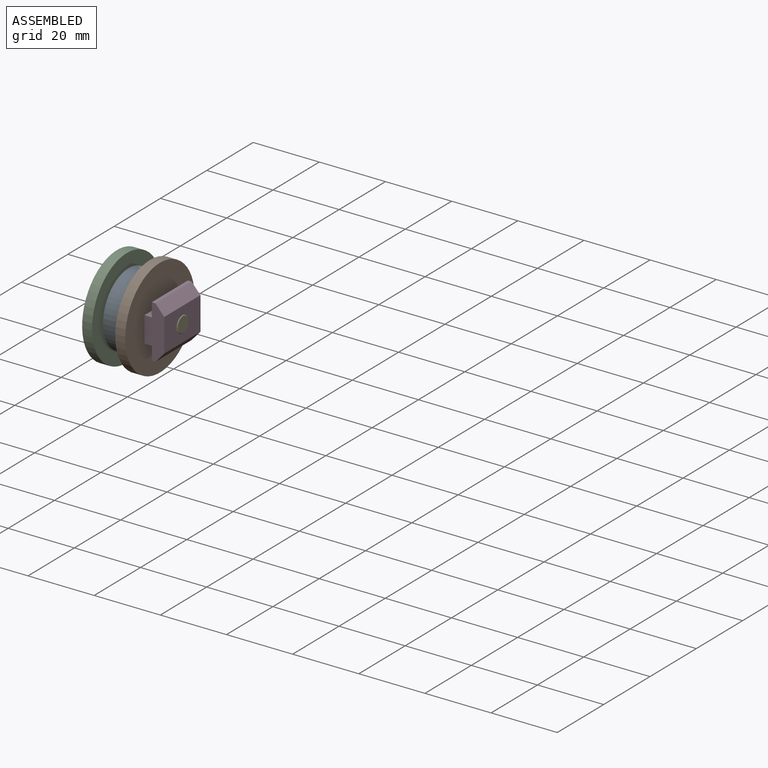
[diagram: assembled view]
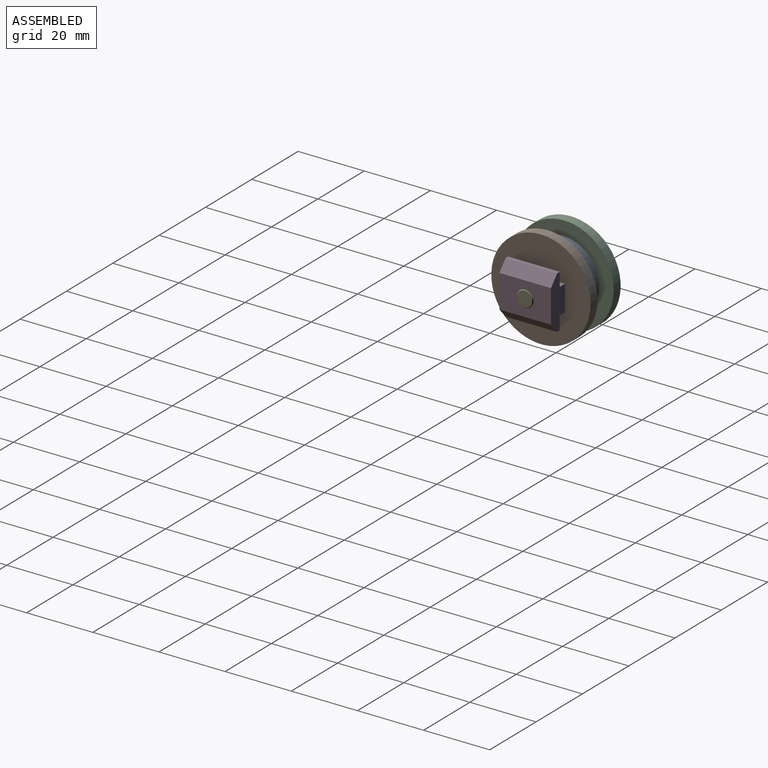
[diagram: assembled view, second angle]
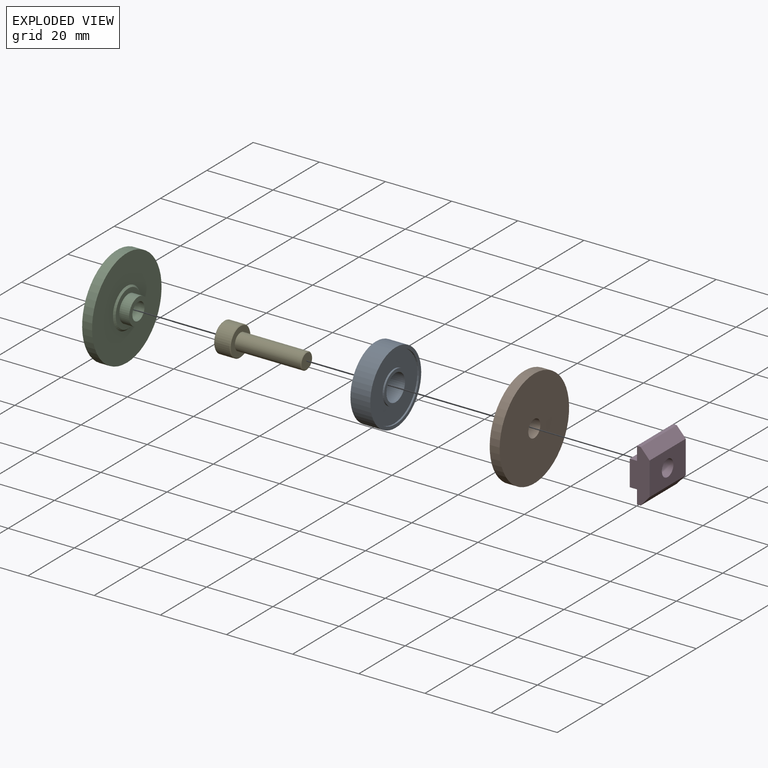
[diagram: exploded view]
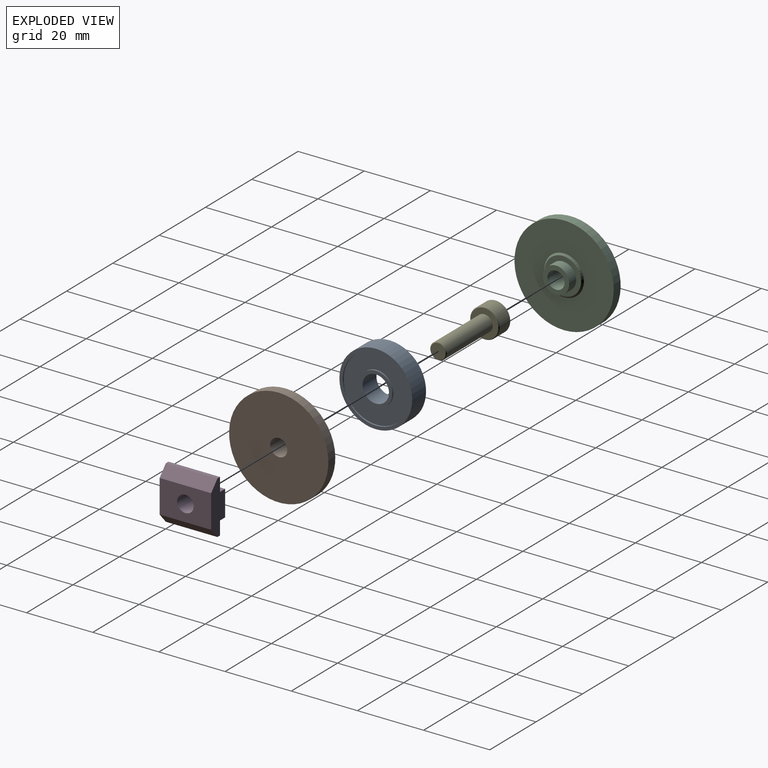
[diagram: exploded view, second angle]
ASSEMBLY  parts=5 mates=4
PART A: 12 faces, bbox 22x22x6 mm
  f0: plane 10x10mm, normal (0,0,-1), area 28.3mm2, adj f5,f9
  f1: cylinder r=10mm len=20mm, axis (0,0,-1), area 31.4mm2, adj f3,f8
  f2: cylinder r=11mm len=22mm, axis (0,0,-1), area 414.7mm2, adj f3,f4
  f3: plane 22x22mm, normal (0,0,1), area 66mm2, adj f1,f2
  f4: plane 22x22mm, normal (0,0,-1), area 66mm2, adj f2,f10
  f5: cylinder r=4mm len=8mm, axis (0,0,-1), area 150.8mm2, adj f0,f7
  f6: cylinder r=5mm len=10mm, axis (0,0,-1), area 15.7mm2, adj f7,f8
  f7: plane 10x10mm, normal (0,0,1), area 28.3mm2, adj f5,f6
  f8: plane 20x20mm, normal (0,0,1), area 235.6mm2, adj f1,f6
  f9: cylinder r=5mm len=10mm, axis (0,0,-1), area 15.7mm2, adj f0,f11
  f10: cylinder r=10mm len=20mm, axis (0,0,-1), area 31.4mm2, adj f4,f11
  f11: plane 20x20mm, normal (0,0,-1), area 235.6mm2, adj f9,f10
PART B: 8 faces, bbox 30x30x6.5 mm
  f0: cylinder r=2.6mm len=6.5mm, axis (0,0,-1), area 106.2mm2, adj f3,f6
  f1: cylinder r=15mm len=30mm, axis (0,0,-1), area 282.7mm2, adj f2,f3
  f2: plane 30x30mm, normal (0,0,1), area 593.8mm2, adj f1,f7
  f3: plane 30x30mm, normal (0,0,-1), area 685.6mm2, adj f0,f1
  f4: plane 11x11mm, normal (0,0,1), area 44.8mm2, adj f5,f7
  f5: cylinder r=4mm len=8mm, axis (0,0,-1), area 75.4mm2, adj f4,f6
  f6: plane 8x8mm, normal (0,0,1), area 29mm2, adj f0,f5
  f7: cone r=5.5mm half-angle=45deg, axis (0,0,-1), area 25.5mm2, adj f2,f4
PART C: same geometry as B
PART D: 13 faces, bbox 16x6x15.6 mm
  f0: plane 15.6x2.2mm, normal (1,0,0), area 34.3mm2, adj f1,f9,f10,f11
  f1: plane 15.6x7.8mm, normal (0,1,0), area 102mm2, adj f0,f2,f10,f11,f12
  f2: plane 15.6x2.2mm, normal (-1,0,0), area 34.3mm2, adj f1,f3,f10,f11
  f3: plane 15.6x4.1mm, normal (0,1,0), area 64mm2, adj f2,f4,f10,f11
  f4: plane 15.6x1.1mm, normal (-1,0,0), area 17.2mm2, adj f3,f5,f10,f11
  f5: plane 15.6x3mm, normal (-0.67,-0.74,0), area 63mm2, adj f4,f6,f10,f11
  f6: plane 15.6x10mm, normal (0,-1,0), area 136.4mm2, adj f5,f7,f10,f11,f12
  f7: plane 15.6x3mm, normal (0.67,-0.74,0), area 63mm2, adj f6,f8,f10,f11
  f8: plane 15.6x1.1mm, normal (1,0,0), area 17.2mm2, adj f7,f9,f10,f11
  f9: plane 15.6x4.1mm, normal (0,1,0), area 64mm2, adj f0,f8,f10,f11
  f10: plane 16x6mm, normal (0,0,1), area 69.9mm2, adj f0,f1,f2,f3,f4,f5,f6,f7
  f11: plane 16x6mm, normal (0,0,-1), area 69.9mm2, adj f0,f1,f2,f3,f4,f5,f6,f7
  f12: cylinder r=2.5mm len=6mm, axis (0,1,0), area 94.2mm2, adj f1,f6
PART E: 21 faces, bbox 8.9x8.9x25 mm
  f0: plane 3.8x2.37mm, normal (0,-1,0), area 9mm2, adj f1,f5,f8,f17
  f1: plane 3.8x2.05mm, normal (-0.87,-0.5,0), area 9mm2, adj f0,f2,f8,f18
  f2: plane 3.8x2.05mm, normal (-0.87,0.5,0), area 9mm2, adj f1,f3,f8,f16
  f3: plane 3.8x2.37mm, normal (0,1,0), area 9mm2, adj f2,f4,f8,f14
  f4: plane 3.8x2.05mm, normal (0.87,0.5,0), area 9mm2, adj f3,f5,f8,f13
  f5: plane 3.8x2.05mm, normal (0.87,-0.5,0), area 9mm2, adj f0,f4,f8,f15
  f6: cylinder r=4.45mm len=8.9mm, axis (0,0,-1), area 128.6mm2, adj f12,f19
  f7: plane 8.5x8.5mm, normal (0,0,-1), area 39.2mm2, adj f13,f14,f15,f16,f17,f18,f19
  f8: plane 4.73x4.1mm, normal (0,0,-1), area 14.6mm2, adj f0,f1,f2,f3,f4,f5
  f9: plane 8.5x8.5mm, normal (0,0,1), area 37.1mm2, adj f10,f12
  f10: cylinder r=2.5mm len=19.8mm, axis (0,0,-1), area 311mm2, adj f9,f20
  f11: plane 4.6x4.6mm, normal (0,0,1), area 16.6mm2, adj f20
  f12: cone r=4.25mm half-angle=45deg, axis (0,0,-1), area 7.7mm2, adj f6,f9
  f13: plane 2.25x1.41mm, normal (0.61,0.35,-0.71), area 0.7mm2, adj f4,f7,f14,f15
  f14: plane 2.6x0.2mm, normal (0,0.71,-0.71), area 0.7mm2, adj f3,f7,f13,f16
  f15: plane 2.25x1.41mm, normal (0.61,-0.35,-0.71), area 0.7mm2, adj f5,f7,f13,f17
  f16: plane 2.25x1.41mm, normal (-0.61,0.35,-0.71), area 0.7mm2, adj f2,f7,f14,f18
  f17: plane 2.6x0.2mm, normal (0,-0.71,-0.71), area 0.7mm2, adj f0,f7,f15,f18
  f18: plane 2.25x1.41mm, normal (-0.61,-0.35,-0.71), area 0.7mm2, adj f1,f7,f16,f17
  f19: cone r=4.45mm half-angle=45deg, axis (0,0,1), area 7.7mm2, adj f6,f7
  f20: cone r=2.3mm half-angle=45deg, axis (0,0,-1), area 4.3mm2, adj f10,f11
PLACE A rot(axis=(0,-1,0),90deg) t=(15.85,14.99,19.32)mm
PLACE B rot(axis=(0,-1,0),90deg) t=(19.35,14.99,19.32)mm
PLACE C rot(axis=(0,1,0),90deg) t=(6.35,14.99,19.32)mm fixed
PLACE D rot(axis=(-0.58,0.58,0.58),120deg) t=(-5.81,7.19,-33.24)mm
PLACE E rot(axis=(0.71,0,0.71),180deg) t=(1.35,23.07,-53.4)mm
MATE fastened E.f6 <-> C.f0  axis (1,0,0) through (6.35,14.99,19.32)mm
MATE fastened D.f12 <-> E.f6  axis (-1,0,0) through (20.15,14.99,19.32)mm
MATE fastened A.f5 <-> C.f7  axis (1,0,0) through (9.85,14.99,19.32)mm
MATE fastened B.f7 <-> C.f7  axis (-1,0,0) through (12.85,14.99,19.32)mm
